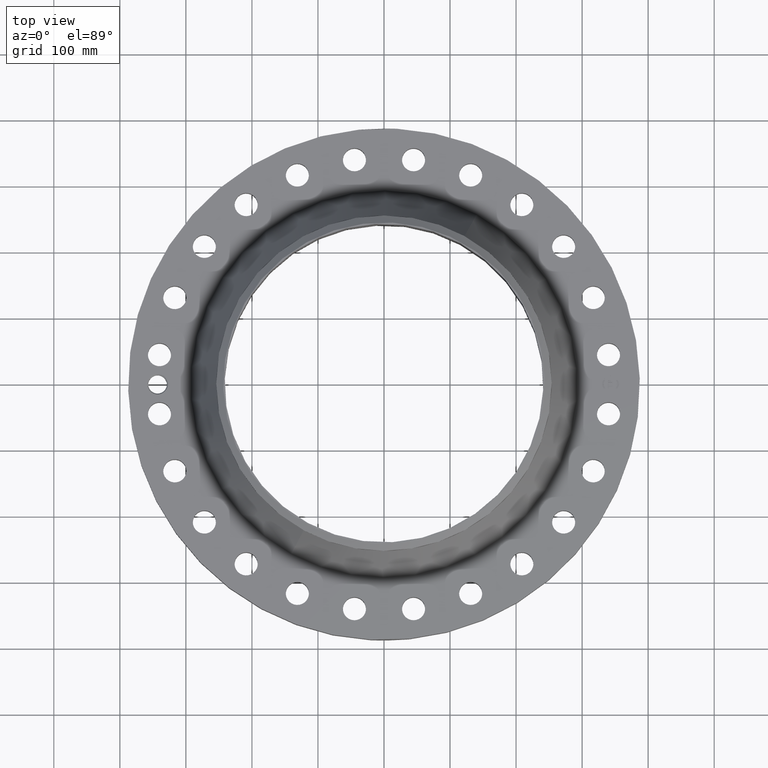
[diagram: clean part render]
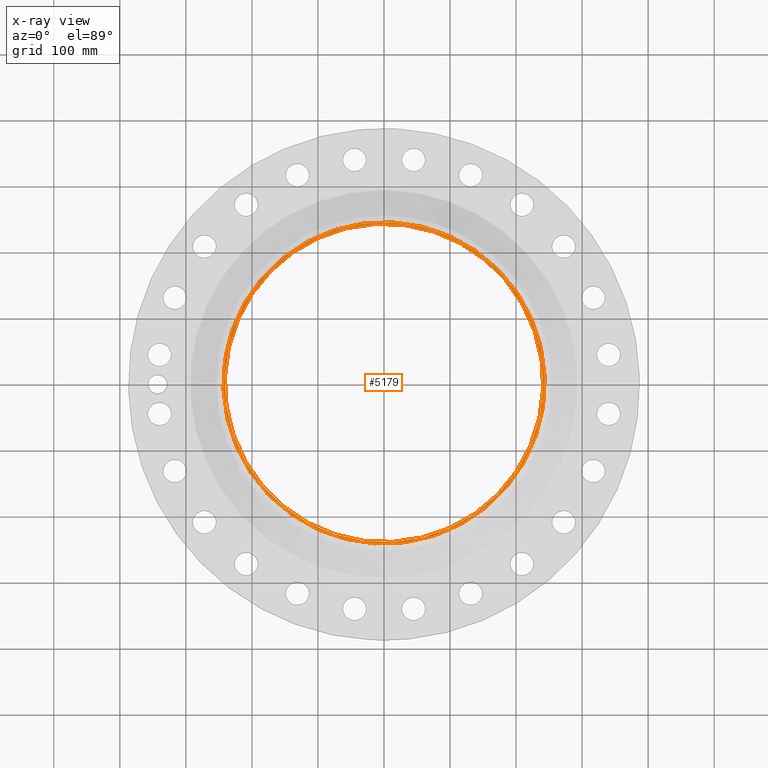
[diagram: x-ray — body ghosted, one internal face saturated and labeled with its STEP entity id]
A machine part, top view, then the same camera in x-ray: the body is ghosted and one INTERNAL B-rep face — a face not visible from any outside direction — is saturated and labeled: STEP entity #5179.
In plain terms, the highlighted planar face has unit normal (0, 0, -1).
Its self-contained STEP definition (entity closure, byte-faithful):
#3992=AXIS2_PLACEMENT_3D('Circle Axis2P3D',#3990,#3991,$) ;
#4060=AXIS2_PLACEMENT_3D('Circle Axis2P3D',#4058,#4059,$) ;
#5155=AXIS2_PLACEMENT_3D('Plane Axis2P3D',#5152,#5153,#5154) ;
#5159=AXIS2_PLACEMENT_3D('Circle Axis2P3D',#5157,#5158,$) ;
#5168=AXIS2_PLACEMENT_3D('Circle Axis2P3D',#5166,#5167,$) ;
#3990=CARTESIAN_POINT('Axis2P3D Location',(0.,0.,6.44000000003)) ;
#3994=CARTESIAN_POINT('Vertex',(4.55454261676,8.33703433799,6.44000000003)) ;
#3996=CARTESIAN_POINT('Vertex',(-4.55454261676,-8.33703433799,6.44000000003)) ;
#4058=CARTESIAN_POINT('Axis2P3D Location',(0.,0.,6.44000000003)) ;
#5152=CARTESIAN_POINT('Axis2P3D Location',(0.,10.,6.44000000003)) ;
#5157=CARTESIAN_POINT('Axis2P3D Location',(0.,0.,6.44000000003)) ;
#5161=CARTESIAN_POINT('Vertex',(4.59229265917,-8.40613532712,6.44000000003)) ;
#5163=CARTESIAN_POINT('Vertex',(-4.59229265917,8.40613532712,6.44000000003)) ;
#5166=CARTESIAN_POINT('Axis2P3D Location',(0.,0.,6.44000000003)) ;
#3991=DIRECTION('Axis2P3D Direction',(0.,0.,-0.0393700787402)) ;
#4059=DIRECTION('Axis2P3D Direction',(0.,0.,-0.0393700787402)) ;
#5153=DIRECTION('Axis2P3D Direction',(0.,0.,-0.0393700787402)) ;
#5154=DIRECTION('Axis2P3D XDirection',(0.0393700787402,0.,0.)) ;
#5158=DIRECTION('Axis2P3D Direction',(0.,0.,-0.0393700787402)) ;
#5167=DIRECTION('Axis2P3D Direction',(0.,0.,-0.0393700787402)) ;
#5172=ORIENTED_EDGE('',*,*,#5165,.T.) ;
#5173=ORIENTED_EDGE('',*,*,#5170,.T.) ;
#5176=ORIENTED_EDGE('',*,*,#4062,.T.) ;
#5177=ORIENTED_EDGE('',*,*,#3998,.T.) ;
#5178=FACE_BOUND('',#5175,.T.) ;
#5179=ADVANCED_FACE('PartBody',(#5174,#5178),#5156,.F.) ;
#3993=CIRCLE('generated circle',#3992,9.50000000004) ;
#4061=CIRCLE('generated circle',#4060,9.50000000004) ;
#5160=CIRCLE('generated circle',#5159,9.57874015752) ;
#5169=CIRCLE('generated circle',#5168,9.57874015752) ;
#3998=EDGE_CURVE('',#3995,#3997,#3993,.T.) ;
#4062=EDGE_CURVE('',#3997,#3995,#4061,.T.) ;
#5165=EDGE_CURVE('',#5162,#5164,#5160,.F.) ;
#5170=EDGE_CURVE('',#5164,#5162,#5169,.F.) ;
#5171=EDGE_LOOP('',(#5172,#5173)) ;
#5175=EDGE_LOOP('',(#5176,#5177)) ;
#5174=FACE_OUTER_BOUND('',#5171,.T.) ;
#5156=PLANE('',#5155) ;
#3995=VERTEX_POINT('',#3994) ;
#3997=VERTEX_POINT('',#3996) ;
#5162=VERTEX_POINT('',#5161) ;
#5164=VERTEX_POINT('',#5163) ;